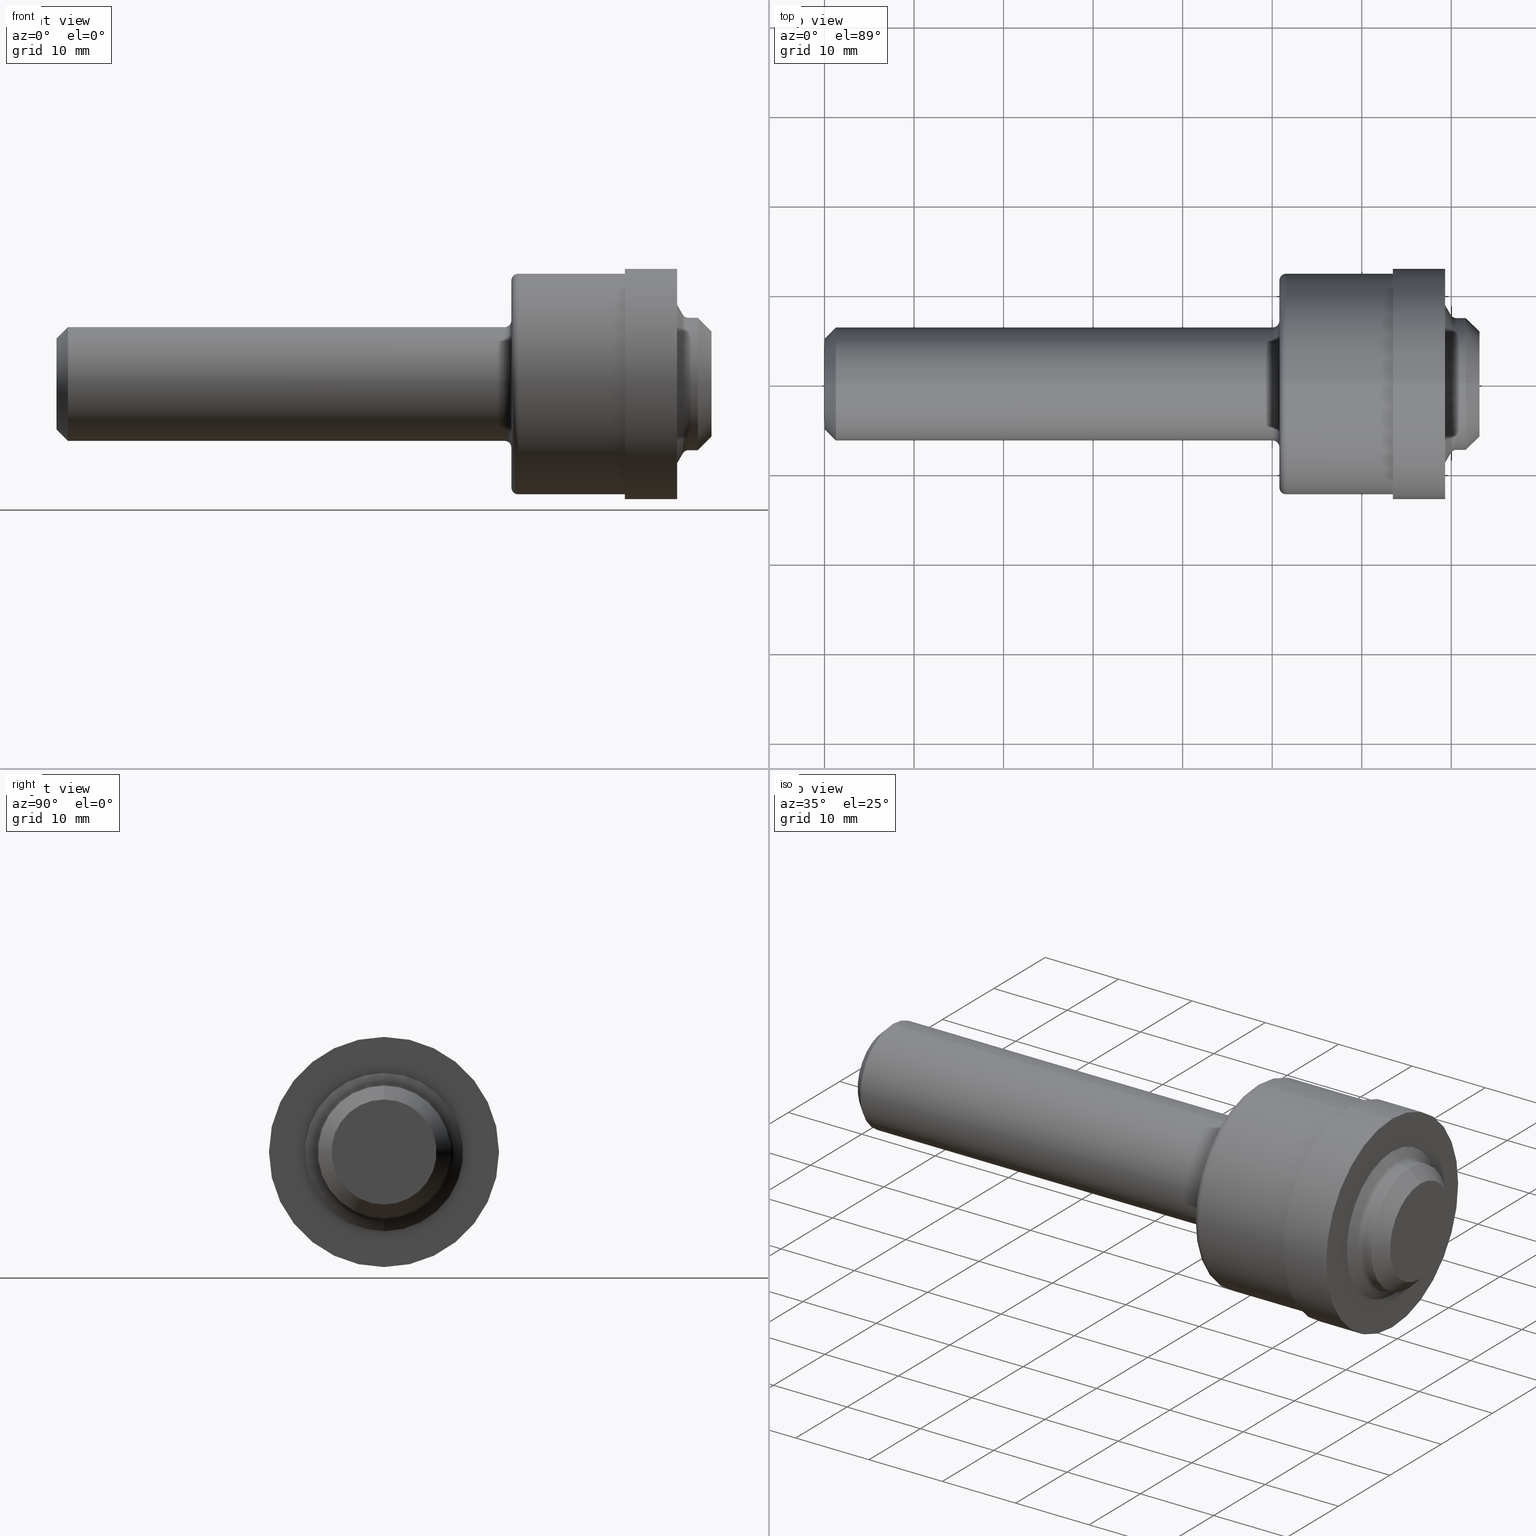
[diagram: canonical four-view strip — front | top / right | iso, engineering-drawing reading convention]
A machine part, canonical four-view strip (front | top / right | iso — engineering-drawing reading convention). The complete STEP part file that produces these views, byte-faithful:
ISO-10303-21;
HEADER;
FILE_DESCRIPTION (( 'STEP AP214' ),
    '1' );
FILE_NAME ('AS5202-06X.STEP',
    '2023-11-10T18:17:23',
    ( '' ),
    ( '' ),
    'SwSTEP 2.0',
    'SolidWorks 2022',
    '' );
FILE_SCHEMA (( 'AUTOMOTIVE_DESIGN' ));
ENDSEC;

DATA;
#1 = FACE_OUTER_BOUND ( 'NONE', #554, .T. ) ;
#2 = CARTESIAN_POINT ( 'NONE',  ( 1.969999999999999973, 0.000000000000000000, 0.2499000000000000110 ) ) ;
#3 = ORIENTED_EDGE ( 'NONE', *, *, #599, .F. ) ;
#4 = CARTESIAN_POINT ( 'NONE',  ( 2.753479651413640372, 0.000000000000000000, 0.3055999999999998162 ) ) ;
#5 = CARTESIAN_POINT ( 'NONE',  ( 2.728999999999999648, 0.5060000000000000053, 0.000000000000000000 ) ) ;
#6 = ORIENTED_EDGE ( 'NONE', *, *, #134, .T. ) ;
#7 = ADVANCED_FACE ( 'NONE', ( #202, #357 ), #619, .F. ) ;
#8 = VECTOR ( 'NONE', #114, 39.37007874015748143 ) ;
#9 = CARTESIAN_POINT ( 'NONE',  ( 2.753479651413640372, 0.000000000000000000, 0.000000000000000000 ) ) ;
#10 = EDGE_CURVE ( 'NONE', #592, #184, #463, .T. ) ;
#11 = CARTESIAN_POINT ( 'NONE',  ( 2.778594388123388104, 3.564946832317952946E-17, -0.2911000000000006360 ) ) ;
#12 = DIRECTION ( 'NONE',  ( -1.000000000000000000, -0.000000000000000000, -0.000000000000000000 ) ) ;
#13 = DIRECTION ( 'NONE',  ( 1.000000000000000000, 0.000000000000000000, 0.000000000000000000 ) ) ;
#14 = ORIENTED_EDGE ( 'NONE', *, *, #584, .F. ) ;
#15 = DIRECTION ( 'NONE',  ( 0.000000000000000000, 0.000000000000000000, 1.000000000000000000 ) ) ;
#16 = DIRECTION ( 'NONE',  ( -1.000000000000000000, -0.000000000000000000, -0.000000000000000000 ) ) ;
#17 = ORIENTED_EDGE ( 'NONE', *, *, #224, .F. ) ;
#18 = AXIS2_PLACEMENT_3D ( 'NONE', #9, #399, #62 ) ;
#19 = CARTESIAN_POINT ( 'NONE',  ( 0.000000000000000000, 0.000000000000000000, 0.000000000000000000 ) ) ;
#20 = AXIS2_PLACEMENT_3D ( 'NONE', #542, #640, #153 ) ;
#21 = CARTESIAN_POINT ( 'NONE',  ( 0.000000000000000000, 6.196712803685607066E-17, -0.5060000000000000053 ) ) ;
#22 = VERTEX_POINT ( 'NONE', #11 ) ;
#23 = CIRCLE ( 'NONE', #596, 0.2499000000000000110 ) ;
#24 = PRODUCT ( 'AS5202-06X', 'AS5202-06X', '', ( #198 ) ) ;
#25 = CARTESIAN_POINT ( 'NONE',  ( 0.05000000000000000278, 0.000000000000000000, 0.000000000000000000 ) ) ;
#26 = ORIENTED_EDGE ( 'NONE', *, *, #74, .F. ) ;
#27 = CARTESIAN_POINT ( 'NONE',  ( 2.819999999999999840, 0.000000000000000000, 0.000000000000000000 ) ) ;
#28 = ORIENTED_EDGE ( 'NONE', *, *, #84, .F. ) ;
#29 = PRODUCT_DEFINITION_FORMATION_WITH_SPECIFIED_SOURCE ( 'ANY', '', #24, .NOT_KNOWN. ) ;
#30 = PLANE ( 'NONE',  #216 ) ;
#31 = EDGE_CURVE ( 'NONE', #228, #189, #103, .T. ) ;
#32 = AXIS2_PLACEMENT_3D ( 'NONE', #492, #693, #319 ) ;
#33 = EDGE_LOOP ( 'NONE', ( #346, #583 ) ) ;
#34 = DIRECTION ( 'NONE',  ( 0.000000000000000000, 0.000000000000000000, 1.000000000000000000 ) ) ;
#35 = VERTEX_POINT ( 'NONE', #272 ) ;
#36 = AXIS2_PLACEMENT_3D ( 'NONE', #120, #333, #558 ) ;
#37 = CARTESIAN_POINT ( 'NONE',  ( 2.753479651413640372, 0.000000000000000000, 0.000000000000000000 ) ) ;
#38 = ORIENTED_EDGE ( 'NONE', *, *, #385, .T. ) ;
#39 = MANIFOLD_SOLID_BREP ( 'Body', #248 ) ;
#40 = EDGE_CURVE ( 'NONE', #311, #283, #207, .T. ) ;
#41 =( CONVERSION_BASED_UNIT ( 'INCH', #249 ) LENGTH_UNIT ( ) NAMED_UNIT ( #229 ) );
#42 = CONICAL_SURFACE ( 'NONE', #445, 0.3056000000000003713, 1.047197551196586973 ) ;
#43 = DIRECTION ( 'NONE',  ( 0.000000000000000000, 0.000000000000000000, 1.000000000000000000 ) ) ;
#44 = VERTEX_POINT ( 'NONE', #2 ) ;
#45 = CIRCLE ( 'NONE', #379, 0.2311000000000000276 ) ;
#46 = ADVANCED_FACE ( 'NONE', ( #57, #422 ), #209, .F. ) ;
#47 = DIRECTION ( 'NONE',  ( 1.000000000000000000, 0.000000000000000000, 0.000000000000000000 ) ) ;
#48 = VERTEX_POINT ( 'NONE', #109 ) ;
#49 = AXIS2_PLACEMENT_3D ( 'NONE', #296, #168, #443 ) ;
#50 = AXIS2_PLACEMENT_3D ( 'NONE', #127, #565, #79 ) ;
#51 = FACE_OUTER_BOUND ( 'NONE', #665, .T. ) ;
#52 = DIRECTION ( 'NONE',  ( 0.000000000000000000, 0.000000000000000000, 1.000000000000000000 ) ) ;
#53 = DIRECTION ( 'NONE',  ( 0.000000000000000000, 0.000000000000000000, 1.000000000000000000 ) ) ;
#54 = SURFACE_STYLE_FILL_AREA ( #635 ) ;
#55 = ADVANCED_FACE ( 'NONE', ( #315 ), #217, .F. ) ;
#56 = DIRECTION ( 'NONE',  ( 1.000000000000000000, 0.000000000000000000, 0.000000000000000000 ) ) ;
#57 = FACE_OUTER_BOUND ( 'NONE', #689, .T. ) ;
#58 = CARTESIAN_POINT ( 'NONE',  ( 2.498999999999999666, 0.000000000000000000, 0.5060000000000000053 ) ) ;
#59 = ORIENTED_EDGE ( 'NONE', *, *, #151, .F. ) ;
#60 = ADVANCED_FACE ( 'NONE', ( #429 ), #449, .T. ) ;
#61 = UNCERTAINTY_MEASURE_WITH_UNIT (LENGTH_MEASURE( 1.000000000000000082E-05 ), #543, 'distance_accuracy_value', 'NONE');
#62 = DIRECTION ( 'NONE',  ( 0.000000000000000000, 0.000000000000000000, 1.000000000000000000 ) ) ;
#63 = FACE_OUTER_BOUND ( 'NONE', #73, .T. ) ;
#64 = VERTEX_POINT ( 'NONE', #154 ) ;
#65 = DIRECTION ( 'NONE',  ( -1.000000000000000000, -0.000000000000000000, -0.000000000000000000 ) ) ;
#66 = DIRECTION ( 'NONE',  ( 0.000000000000000000, 0.000000000000000000, 1.000000000000000000 ) ) ;
#67 = ORIENTED_EDGE ( 'NONE', *, *, #695, .T. ) ;
#68 = DIRECTION ( 'NONE',  ( -1.000000000000000000, -0.000000000000000000, -0.000000000000000000 ) ) ;
#69 = DIRECTION ( 'NONE',  ( 0.000000000000000000, 0.000000000000000000, -1.000000000000000000 ) ) ;
#70 = EDGE_LOOP ( 'NONE', ( #579, #169, #3, #143 ) ) ;
#71 = DIRECTION ( 'NONE',  ( 0.000000000000000000, 0.000000000000000000, 1.000000000000000000 ) ) ;
#72 = FACE_OUTER_BOUND ( 'NONE', #559, .T. ) ;
#73 = EDGE_LOOP ( 'NONE', ( #607, #408, #67, #477 ) ) ;
#74 = EDGE_CURVE ( 'NONE', #472, #35, #157, .T. ) ;
#75 = COLOUR_RGB ( '',0.7529411764705882248, 0.7529411764705882248, 0.7529411764705882248 ) ;
#76 = DIRECTION ( 'NONE',  ( -1.000000000000000000, -0.000000000000000000, -0.000000000000000000 ) ) ;
#77 = AXIS2_PLACEMENT_3D ( 'NONE', #533, #267, #318 ) ;
#78 = TOROIDAL_SURFACE ( 'NONE', #300, 0.3200999999999999956, 0.02899999999999936656 ) ;
#79 = DIRECTION ( 'NONE',  ( 0.000000000000000000, 0.000000000000000000, 1.000000000000000000 ) ) ;
#80 = ORIENTED_EDGE ( 'NONE', *, *, #309, .T. ) ;
#81 = FACE_OUTER_BOUND ( 'NONE', #341, .T. ) ;
#82 = ORIENTED_EDGE ( 'NONE', *, *, #671, .F. ) ;
#83 = CARTESIAN_POINT ( 'NONE',  ( 0.000000000000000000, 0.000000000000000000, 0.000000000000000000 ) ) ;
#84 = EDGE_CURVE ( 'NONE', #489, #210, #437, .T. ) ;
#85 = FACE_OUTER_BOUND ( 'NONE', #172, .T. ) ;
#86 = DIRECTION ( 'NONE',  ( 0.000000000000000000, 0.000000000000000000, -1.000000000000000000 ) ) ;
#87 = LINE ( 'NONE', #673, #88 ) ;
#88 = VECTOR ( 'NONE', #147, 39.37007874015748143 ) ;
#89 = AXIS2_PLACEMENT_3D ( 'NONE', #656, #16, #222 ) ;
#90 = VERTEX_POINT ( 'NONE', #58 ) ;
#91 = DIRECTION ( 'NONE',  ( 0.000000000000000000, 0.000000000000000000, 1.000000000000000000 ) ) ;
#92 = ORIENTED_EDGE ( 'NONE', *, *, #309, .F. ) ;
#93 = EDGE_CURVE ( 'NONE', #539, #64, #119, .T. ) ;
#94 = CARTESIAN_POINT ( 'NONE',  ( 2.819999999999999840, 0.000000000000000000, 0.000000000000000000 ) ) ;
#95 = EDGE_LOOP ( 'NONE', ( #398, #384, #444, #367 ) ) ;
#96 = CIRCLE ( 'NONE', #538, 0.02899999999999937003 ) ;
#97 = CARTESIAN_POINT ( 'NONE',  ( 0.05000000000000000278, 0.000000000000000000, -0.2499000000000000110 ) ) ;
#98 = ORIENTED_EDGE ( 'NONE', *, *, #483, .F. ) ;
#99 = STYLED_ITEM ( 'NONE', ( #215 ), #39 ) ;
#100 = CARTESIAN_POINT ( 'NONE',  ( 0.000000000000000000, 0.000000000000000000, 0.000000000000000000 ) ) ;
#101 = ADVANCED_FACE ( 'NONE', ( #63 ), #78, .F. ) ;
#102 = DIRECTION ( 'NONE',  ( -1.000000000000000000, -0.000000000000000000, -0.000000000000000000 ) ) ;
#103 = LINE ( 'NONE', #265, #312 ) ;
#104 = EDGE_LOOP ( 'NONE', ( #524, #186, #652, #479 ) ) ;
#105 = CARTESIAN_POINT ( 'NONE',  ( 2.879999999999999893, 0.000000000000000000, 0.000000000000000000 ) ) ;
#106 = CIRCLE ( 'NONE', #214, 0.2311000000000000276 ) ;
#107 = TOROIDAL_SURFACE ( 'NONE', #678, 0.2798999999999999821, 0.02999999999999997113 ) ;
#108 = DIRECTION ( 'NONE',  ( 0.000000000000000000, 0.000000000000000000, 1.000000000000000000 ) ) ;
#109 = CARTESIAN_POINT ( 'NONE',  ( 1.969999999999999973, 3.244089370941338612E-17, -0.2499000000000000110 ) ) ;
#110 = EDGE_LOOP ( 'NONE', ( #499, #122, #381, #412 ) ) ;
#111 = EDGE_CURVE ( 'NONE', #210, #35, #691, .T. ) ;
#112 = CARTESIAN_POINT ( 'NONE',  ( 0.000000000000000000, 5.939536975864663462E-17, -0.4850000000000000422 ) ) ;
#113 = AXIS2_PLACEMENT_3D ( 'NONE', #501, #177, #400 ) ;
#114 = DIRECTION ( 'NONE',  ( -0.5000000000000093259, 0.000000000000000000, 0.8660254037844331565 ) ) ;
#115 = FACE_OUTER_BOUND ( 'NONE', #448, .T. ) ;
#116 = DIRECTION ( 'NONE',  ( 0.000000000000000000, 0.000000000000000000, 1.000000000000000000 ) ) ;
#117 = VERTEX_POINT ( 'NONE', #239 ) ;
#118 = AXIS2_PLACEMENT_3D ( 'NONE', #211, #547, #108 ) ;
#119 = CIRCLE ( 'NONE', #380, 0.2499000000000000110 ) ;
#120 = CARTESIAN_POINT ( 'NONE',  ( 1.969999999999999973, 3.427786390813441802E-17, -0.2798999999999999821 ) ) ;
#121 =( GEOMETRIC_REPRESENTATION_CONTEXT ( 3 ) GLOBAL_UNCERTAINTY_ASSIGNED_CONTEXT ( ( #61 ) ) GLOBAL_UNIT_ASSIGNED_CONTEXT ( ( #543, #269, #688 ) ) REPRESENTATION_CONTEXT ( 'NONE', 'WORKASPACE' ) );
#122 = ORIENTED_EDGE ( 'NONE', *, *, #260, .T. ) ;
#123 = LINE ( 'NONE', #614, #504 ) ;
#124 = LINE ( 'NONE', #21, #167 ) ;
#125 = ORIENTED_EDGE ( 'NONE', *, *, #292, .F. ) ;
#126 = LINE ( 'NONE', #331, #356 ) ;
#127 = CARTESIAN_POINT ( 'NONE',  ( 1.969999999999999973, 0.000000000000000000, 0.000000000000000000 ) ) ;
#128 = ORIENTED_EDGE ( 'NONE', *, *, #151, .T. ) ;
#129 = MECHANICAL_DESIGN_GEOMETRIC_PRESENTATION_REPRESENTATION (  '', ( #433 ), #411 ) ;
#130 = CIRCLE ( 'NONE', #626, 0.2911000000000000254 ) ;
#131 = DIRECTION ( 'NONE',  ( -1.000000000000000000, -0.000000000000000000, -0.000000000000000000 ) ) ;
#132 = ORIENTED_EDGE ( 'NONE', *, *, #490, .T. ) ;
#133 = EDGE_CURVE ( 'NONE', #158, #22, #510, .T. ) ;
#134 = EDGE_CURVE ( 'NONE', #563, #509, #576, .T. ) ;
#135 = FILL_AREA_STYLE ('',( #362 ) ) ;
#136 = CYLINDRICAL_SURFACE ( 'NONE', #173, 0.2499000000000000110 ) ;
#137 = CARTESIAN_POINT ( 'NONE',  ( 2.498999999999999666, 0.4850000000000000422, 0.000000000000000000 ) ) ;
#138 = DIRECTION ( 'NONE',  ( -1.000000000000000000, -0.000000000000000000, -0.000000000000000000 ) ) ;
#139 = EDGE_LOOP ( 'NONE', ( #531, #325, #148, #517 ) ) ;
#140 = CIRCLE ( 'NONE', #308, 0.02999999999999995379 ) ;
#141 = DIRECTION ( 'NONE',  ( 0.000000000000000000, 0.000000000000000000, 1.000000000000000000 ) ) ;
#142 = CIRCLE ( 'NONE', #436, 0.2798999999999999821 ) ;
#143 = ORIENTED_EDGE ( 'NONE', *, *, #40, .F. ) ;
#144 = CONICAL_SURFACE ( 'NONE', #417, 0.2499000000000000110, 0.7853981633974463916 ) ;
#145 = DIRECTION ( 'NONE',  ( 0.000000000000000000, 0.000000000000000000, 1.000000000000000000 ) ) ;
#146 = EDGE_LOOP ( 'NONE', ( #279, #404 ) ) ;
#147 = DIRECTION ( 'NONE',  ( 0.7071067811865489050, 8.659560562354915602E-17, 0.7071067811865461294 ) ) ;
#148 = ORIENTED_EDGE ( 'NONE', *, *, #329, .F. ) ;
#149 = FACE_OUTER_BOUND ( 'NONE', #645, .T. ) ;
#150 = DIRECTION ( 'NONE',  ( 0.000000000000000000, -1.224646799147352221E-16, 1.000000000000000000 ) ) ;
#151 = EDGE_CURVE ( 'NONE', #522, #677, #541, .T. ) ;
#152 = COLOUR_RGB ( '',0.7529411764705882248, 0.7529411764705882248, 0.7529411764705882248 ) ;
#153 = DIRECTION ( 'NONE',  ( 0.000000000000000000, 0.000000000000000000, 1.000000000000000000 ) ) ;
#154 = CARTESIAN_POINT ( 'NONE',  ( 0.05000000000000000278, 3.060392351069235421E-17, -0.2499000000000000110 ) ) ;
#155 = CONICAL_SURFACE ( 'NONE', #560, 0.2311000000000000276, 0.7853981633974491672 ) ;
#156 = CARTESIAN_POINT ( 'NONE',  ( 0.000000000000000000, 0.000000000000000000, -0.1999000000000001886 ) ) ;
#157 = LINE ( 'NONE', #278, #8 ) ;
#158 = VERTEX_POINT ( 'NONE', #439 ) ;
#159 = DIRECTION ( 'NONE',  ( -0.7071067811865469066, 0.000000000000000000, 0.7071067811865481278 ) ) ;
#160 = ADVANCED_FACE ( 'NONE', ( #81 ), #589, .T. ) ;
#161 = LENGTH_MEASURE_WITH_UNIT ( LENGTH_MEASURE( 0.02539999999999999897 ), #482 );
#162 = AXIS2_PLACEMENT_3D ( 'NONE', #301, #669, #518 ) ;
#163 = CARTESIAN_POINT ( 'NONE',  ( 2.728999999999999648, 0.000000000000000000, 0.5060000000000000053 ) ) ;
#164 = PRODUCT_DEFINITION ( 'UNKNOWN', '', #29, #233 ) ;
#165 = ORIENTED_EDGE ( 'NONE', *, *, #440, .F. ) ;
#166 = DIRECTION ( 'NONE',  ( -1.000000000000000000, -0.000000000000000000, -0.000000000000000000 ) ) ;
#167 = VECTOR ( 'NONE', #235, 39.37007874015748143 ) ;
#168 = DIRECTION ( 'NONE',  ( -1.000000000000000000, -0.000000000000000000, -0.000000000000000000 ) ) ;
#169 = ORIENTED_EDGE ( 'NONE', *, *, #10, .T. ) ;
#170 = FACE_OUTER_BOUND ( 'NONE', #139, .T. ) ;
#171 = CARTESIAN_POINT ( 'NONE',  ( 2.778594388123388104, 0.000000000000000000, 0.000000000000000000 ) ) ;
#172 = EDGE_LOOP ( 'NONE', ( #361, #512, #80, #349 ) ) ;
#173 = AXIS2_PLACEMENT_3D ( 'NONE', #582, #138, #34 ) ;
#174 = EDGE_CURVE ( 'NONE', #48, #64, #227, .T. ) ;
#175 = DIRECTION ( 'NONE',  ( -1.000000000000000000, -0.000000000000000000, -0.000000000000000000 ) ) ;
#176 = CIRCLE ( 'NONE', #573, 0.5060000000000000053 ) ;
#177 = DIRECTION ( 'NONE',  ( -1.000000000000000000, -0.000000000000000000, -0.000000000000000000 ) ) ;
#178 = ORIENTED_EDGE ( 'NONE', *, *, #680, .T. ) ;
#179 = DIRECTION ( 'NONE',  ( 0.000000000000000000, -1.000000000000000000, 0.000000000000000000 ) ) ;
#180 = FACE_OUTER_BOUND ( 'NONE', #146, .T. ) ;
#181 = ORIENTED_EDGE ( 'NONE', *, *, #604, .T. ) ;
#182 = CYLINDRICAL_SURFACE ( 'NONE', #49, 0.2911000000000003585 ) ;
#183 = EDGE_CURVE ( 'NONE', #489, #22, #466, .T. ) ;
#184 = VERTEX_POINT ( 'NONE', #389 ) ;
#185 = DIRECTION ( 'NONE',  ( -1.000000000000000000, -0.000000000000000000, -0.000000000000000000 ) ) ;
#186 = ORIENTED_EDGE ( 'NONE', *, *, #201, .T. ) ;
#187 = DIRECTION ( 'NONE',  ( 0.000000000000000000, 0.000000000000000000, 1.000000000000000000 ) ) ;
#188 = DIRECTION ( 'NONE',  ( 0.000000000000000000, 0.000000000000000000, 1.000000000000000000 ) ) ;
#189 = VERTEX_POINT ( 'NONE', #345 ) ;
#190 = DIRECTION ( 'NONE',  ( -1.000000000000000000, -0.000000000000000000, -0.000000000000000000 ) ) ;
#191 = ORIENTED_EDGE ( 'NONE', *, *, #133, .F. ) ;
#192 = APPLICATION_PROTOCOL_DEFINITION ( 'draft international standard', 'automotive_design', 1998, #536 ) ;
#193 = ADVANCED_FACE ( 'NONE', ( #72 ), #182, .T. ) ;
#194 = CARTESIAN_POINT ( 'NONE',  ( 2.879999999999999893, 0.000000000000000000, 0.000000000000000000 ) ) ;
#195 = AXIS2_PLACEMENT_3D ( 'NONE', #481, #68, #608 ) ;
#196 = AXIS2_PLACEMENT_3D ( 'NONE', #637, #591, #639 ) ;
#197 = VERTEX_POINT ( 'NONE', #516 ) ;
#198 = PRODUCT_CONTEXT ( 'NONE', #536, 'mechanical' ) ;
#199 = DIRECTION ( 'NONE',  ( -1.000000000000000000, -0.000000000000000000, -0.000000000000000000 ) ) ;
#200 = VERTEX_POINT ( 'NONE', #651 ) ;
#201 = EDGE_CURVE ( 'NONE', #48, #661, #441, .T. ) ;
#202 = FACE_BOUND ( 'NONE', #426, .T. ) ;
#203 = EDGE_CURVE ( 'NONE', #509, #563, #372, .T. ) ;
#204 = DIRECTION ( 'NONE',  ( 0.000000000000000000, 0.000000000000000000, -1.000000000000000000 ) ) ;
#205 = AXIS2_PLACEMENT_3D ( 'NONE', #684, #56, #204 ) ;
#206 = DIRECTION ( 'NONE',  ( -0.000000000000000000, 0.000000000000000000, 1.000000000000000000 ) ) ;
#207 = CIRCLE ( 'NONE', #32, 0.03000000000000002318 ) ;
#208 = DIRECTION ( 'NONE',  ( 0.000000000000000000, 0.000000000000000000, 1.000000000000000000 ) ) ;
#209 = PLANE ( 'NONE',  #679 ) ;
#210 = VERTEX_POINT ( 'NONE', #569 ) ;
#211 = CARTESIAN_POINT ( 'NONE',  ( 2.000000000000000000, 0.000000000000000000, 0.000000000000000000 ) ) ;
#212 = ORIENTED_EDGE ( 'NONE', *, *, #31, .T. ) ;
#213 = FACE_OUTER_BOUND ( 'NONE', #95, .T. ) ;
#214 = AXIS2_PLACEMENT_3D ( 'NONE', #221, #65, #15 ) ;
#215 = PRESENTATION_STYLE_ASSIGNMENT (( #644 ) ) ;
#216 = AXIS2_PLACEMENT_3D ( 'NONE', #618, #628, #246 ) ;
#217 = TOROIDAL_SURFACE ( 'NONE', #359, 0.2798999999999999821, 0.02999999999999997113 ) ;
#218 = UNCERTAINTY_MEASURE_WITH_UNIT (LENGTH_MEASURE( 1.000000000000000082E-05 ), #41, 'distance_accuracy_value', 'NONE');
#219 = DIRECTION ( 'NONE',  ( -1.000000000000000000, -0.000000000000000000, -0.000000000000000000 ) ) ;
#220 = DIRECTION ( 'NONE',  ( -1.000000000000000000, -0.000000000000000000, -0.000000000000000000 ) ) ;
#221 = CARTESIAN_POINT ( 'NONE',  ( 2.879999999999999893, 0.000000000000000000, 0.000000000000000000 ) ) ;
#222 = DIRECTION ( 'NONE',  ( 0.000000000000000000, 0.000000000000000000, 1.000000000000000000 ) ) ;
#223 = EDGE_LOOP ( 'NONE', ( #6, #132, #418, #92 ) ) ;
#224 = EDGE_CURVE ( 'NONE', #22, #158, #672, .T. ) ;
#225 = DIRECTION ( 'NONE',  ( 0.000000000000000000, 0.000000000000000000, -1.000000000000000000 ) ) ;
#226 = VECTOR ( 'NONE', #654, 39.37007874015748143 ) ;
#227 = LINE ( 'NONE', #455, #338 ) ;
#228 = VERTEX_POINT ( 'NONE', #446 ) ;
#229 = DIMENSIONAL_EXPONENTS ( 1.000000000000000000, 0.000000000000000000, 0.000000000000000000, 0.000000000000000000, 0.000000000000000000, 0.000000000000000000, 0.000000000000000000 ) ;
#230 = VECTOR ( 'NONE', #487, 39.37007874015748143 ) ;
#231 = AXIS2_PLACEMENT_3D ( 'NONE', #511, #286, #606 ) ;
#232 = DIRECTION ( 'NONE',  ( 0.000000000000000000, -1.000000000000000000, 0.000000000000000000 ) ) ;
#233 = PRODUCT_DEFINITION_CONTEXT ( 'detailed design', #595, 'design' ) ;
#234 = AXIS2_PLACEMENT_3D ( 'NONE', #100, #423, #434 ) ;
#235 = DIRECTION ( 'NONE',  ( -1.000000000000000000, -0.000000000000000000, -0.000000000000000000 ) ) ;
#236 = ORIENTED_EDGE ( 'NONE', *, *, #183, .T. ) ;
#237 = LENGTH_MEASURE_WITH_UNIT ( LENGTH_MEASURE( 0.02539999999999999897 ), #276 );
#238 = ADVANCED_FACE ( 'NONE', ( #507, #180 ), #290, .F. ) ;
#239 = CARTESIAN_POINT ( 'NONE',  ( 2.498999999999999666, 6.196712803685607066E-17, -0.5060000000000000053 ) ) ;
#240 = ORIENTED_EDGE ( 'NONE', *, *, #40, .T. ) ;
#241 = SURFACE_STYLE_USAGE ( .BOTH. , #568 ) ;
#242 = EDGE_CURVE ( 'NONE', #528, #613, #480, .T. ) ;
#243 = FACE_OUTER_BOUND ( 'NONE', #364, .T. ) ;
#244 = ORIENTED_EDGE ( 'NONE', *, *, #405, .F. ) ;
#245 =( NAMED_UNIT ( * ) SI_UNIT ( $, .STERADIAN. ) SOLID_ANGLE_UNIT ( ) );
#246 = DIRECTION ( 'NONE',  ( -0.000000000000000000, 0.000000000000000000, 1.000000000000000000 ) ) ;
#247 = ORIENTED_EDGE ( 'NONE', *, *, #93, .F. ) ;
#248 = CLOSED_SHELL ( 'NONE', ( #160, #578, #55, #503, #525, #632, #585, #532, #193, #302, #330, #457, #396, #101, #427, #46, #659, #7, #313, #60, #238, #567, #374, #513, #557 ) ) ;
#249 = LENGTH_MEASURE_WITH_UNIT ( LENGTH_MEASURE( 0.02539999999999999897 ), #353 );
#250 = DIRECTION ( 'NONE',  ( -1.000000000000000000, -0.000000000000000000, -0.000000000000000000 ) ) ;
#251 = ORIENTED_EDGE ( 'NONE', *, *, #385, .F. ) ;
#252 = EDGE_CURVE ( 'NONE', #613, #117, #124, .T. ) ;
#253 = FACE_OUTER_BOUND ( 'NONE', #682, .T. ) ;
#254 = ORIENTED_EDGE ( 'NONE', *, *, #383, .F. ) ;
#255 = PRESENTATION_STYLE_ASSIGNMENT (( #241 ) ) ;
#256 = LINE ( 'NONE', #526, #590 ) ;
#257 = VECTOR ( 'NONE', #310, 39.37007874015748143 ) ;
#258 = ORIENTED_EDGE ( 'NONE', *, *, #365, .F. ) ;
#259 = EDGE_CURVE ( 'NONE', #117, #90, #351, .T. ) ;
#260 = EDGE_CURVE ( 'NONE', #48, #44, #648, .T. ) ;
#261 = DIRECTION ( 'NONE',  ( 0.000000000000000000, 0.000000000000000000, -1.000000000000000000 ) ) ;
#262 = ORIENTED_EDGE ( 'NONE', *, *, #695, .F. ) ;
#263 = AXIS2_PLACEMENT_3D ( 'NONE', #452, #397, #612 ) ;
#264 = CYLINDRICAL_SURFACE ( 'NONE', #195, 0.2499000000000000110 ) ;
#265 = CARTESIAN_POINT ( 'NONE',  ( 2.879999999999999893, 2.830158752829533405E-17, -0.2311000000000000276 ) ) ;
#266 = ORIENTED_EDGE ( 'NONE', *, *, #440, .T. ) ;
#267 = DIRECTION ( 'NONE',  ( -1.000000000000000000, -0.000000000000000000, -0.000000000000000000 ) ) ;
#268 = VECTOR ( 'NONE', #159, 39.37007874015748143 ) ;
#269 =( NAMED_UNIT ( * ) PLANE_ANGLE_UNIT ( ) SI_UNIT ( $, .RADIAN. ) );
#270 = AXIS2_PLACEMENT_3D ( 'NONE', #340, #220, #66 ) ;
#271 = DIRECTION ( 'NONE',  ( 0.000000000000000000, 0.000000000000000000, 1.000000000000000000 ) ) ;
#272 = CARTESIAN_POINT ( 'NONE',  ( 2.728999999999999648, 0.000000000000000000, 0.3479999999999999760 ) ) ;
#273 = CARTESIAN_POINT ( 'NONE',  ( 2.029999999999999805, 0.000000000000000000, 0.000000000000000000 ) ) ;
#274 = DIRECTION ( 'NONE',  ( -1.000000000000000000, -0.000000000000000000, -0.000000000000000000 ) ) ;
#275 = ORIENTED_EDGE ( 'NONE', *, *, #617, .F. ) ;
#276 =( LENGTH_UNIT ( ) NAMED_UNIT ( * ) SI_UNIT ( $, .METRE. ) );
#277 = AXIS2_PLACEMENT_3D ( 'NONE', #83, #187, #406 ) ;
#278 = CARTESIAN_POINT ( 'NONE',  ( 2.753479651413640372, 0.000000000000000000, 0.3056000000000003713 ) ) ;
#279 = ORIENTED_EDGE ( 'NONE', *, *, #599, .T. ) ;
#280 = DIRECTION ( 'NONE',  ( 0.000000000000000000, 0.000000000000000000, -1.000000000000000000 ) ) ;
#281 = EDGE_CURVE ( 'NONE', #528, #90, #256, .T. ) ;
#282 = DIRECTION ( 'NONE',  ( 0.000000000000000000, 0.000000000000000000, 1.000000000000000000 ) ) ;
#283 = VERTEX_POINT ( 'NONE', #459 ) ;
#284 = CARTESIAN_POINT ( 'NONE',  ( 2.000000000000000000, 3.427786390813441802E-17, -0.2798999999999999821 ) ) ;
#285 = AXIS2_PLACEMENT_3D ( 'NONE', #407, #521, #188 ) ;
#286 = DIRECTION ( 'NONE',  ( -1.000000000000000000, -0.000000000000000000, -0.000000000000000000 ) ) ;
#287 = ORIENTED_EDGE ( 'NONE', *, *, #292, .T. ) ;
#288 = CYLINDRICAL_SURFACE ( 'NONE', #594, 0.5060000000000000053 ) ;
#289 = CIRCLE ( 'NONE', #368, 0.2499000000000000110 ) ;
#290 = PLANE ( 'NONE',  #683 ) ;
#291 = ORIENTED_EDGE ( 'NONE', *, *, #483, .T. ) ;
#292 = EDGE_CURVE ( 'NONE', #613, #528, #317, .T. ) ;
#293 = CARTESIAN_POINT ( 'NONE',  ( 1.969999999999999973, 0.000000000000000000, 0.2798999999999999821 ) ) ;
#294 = DIRECTION ( 'NONE',  ( -1.000000000000000000, -0.000000000000000000, -0.000000000000000000 ) ) ;
#295 = ORIENTED_EDGE ( 'NONE', *, *, #224, .T. ) ;
#296 = CARTESIAN_POINT ( 'NONE',  ( 0.000000000000000000, 0.000000000000000000, 0.000000000000000000 ) ) ;
#297 = ORIENTED_EDGE ( 'NONE', *, *, #475, .T. ) ;
#298 = CYLINDRICAL_SURFACE ( 'NONE', #162, 0.2911000000000003585 ) ;
#299 = CARTESIAN_POINT ( 'NONE',  ( 2.029999999999999805, 5.572142936120457080E-17, -0.4550000000000000155 ) ) ;
#300 = AXIS2_PLACEMENT_3D ( 'NONE', #609, #131, #282 ) ;
#301 = CARTESIAN_POINT ( 'NONE',  ( 0.000000000000000000, 0.000000000000000000, 0.000000000000000000 ) ) ;
#302 = ADVANCED_FACE ( 'NONE', ( #253 ), #155, .T. ) ;
#303 = ORIENTED_EDGE ( 'NONE', *, *, #515, .F. ) ;
#304 = FACE_OUTER_BOUND ( 'NONE', #484, .T. ) ;
#305 = ORIENTED_EDGE ( 'NONE', *, *, #649, .T. ) ;
#306 = DIRECTION ( 'NONE',  ( -1.000000000000000000, -0.000000000000000000, -0.000000000000000000 ) ) ;
#307 = EDGE_LOOP ( 'NONE', ( #401, #431, #610, #26 ) ) ;
#308 = AXIS2_PLACEMENT_3D ( 'NONE', #293, #179, #225 ) ;
#309 = EDGE_CURVE ( 'NONE', #563, #311, #360, .T. ) ;
#310 = DIRECTION ( 'NONE',  ( 0.7071067811865489050, 0.000000000000000000, -0.7071067811865461294 ) ) ;
#311 = VERTEX_POINT ( 'NONE', #630 ) ;
#312 = VECTOR ( 'NONE', #376, 39.37007874015748143 ) ;
#313 = ADVANCED_FACE ( 'NONE', ( #85 ), #350, .T. ) ;
#314 = FACE_OUTER_BOUND ( 'NONE', #570, .T. ) ;
#315 = FACE_OUTER_BOUND ( 'NONE', #104, .T. ) ;
#316 = AXIS2_PLACEMENT_3D ( 'NONE', #387, #393, #602 ) ;
#317 = CIRCLE ( 'NONE', #285, 0.5060000000000000053 ) ;
#318 = DIRECTION ( 'NONE',  ( 0.000000000000000000, 0.000000000000000000, 1.000000000000000000 ) ) ;
#319 = DIRECTION ( 'NONE',  ( 0.000000000000000000, 0.000000000000000000, -1.000000000000000000 ) ) ;
#320 = DIRECTION ( 'NONE',  ( -1.000000000000000000, -0.000000000000000000, -0.000000000000000000 ) ) ;
#321 = CONICAL_SURFACE ( 'NONE', #642, 0.3056000000000003713, 1.047197551196586973 ) ;
#322 = CARTESIAN_POINT ( 'NONE',  ( 2.753479651413640372, 3.742520618194316303E-17, -0.3056000000000003713 ) ) ;
#323 = AXIS2_PLACEMENT_3D ( 'NONE', #571, #185, #676 ) ;
#324 = CYLINDRICAL_SURFACE ( 'NONE', #234, 0.4850000000000000422 ) ;
#325 = ORIENTED_EDGE ( 'NONE', *, *, #252, .T. ) ;
#326 = CARTESIAN_POINT ( 'NONE',  ( 2.753479651413640372, 0.000000000000000000, 0.000000000000000000 ) ) ;
#327 = DIRECTION ( 'NONE',  ( -0.5000000000000093259, 1.060575238724900259E-16, -0.8660254037844331565 ) ) ;
#328 = ORIENTED_EDGE ( 'NONE', *, *, #281, .T. ) ;
#329 = EDGE_CURVE ( 'NONE', #90, #117, #176, .T. ) ;
#330 = ADVANCED_FACE ( 'NONE', ( #304 ), #30, .F. ) ;
#331 = CARTESIAN_POINT ( 'NONE',  ( 0.000000000000000000, 0.000000000000000000, 0.2911000000000003585 ) ) ;
#332 = AXIS2_PLACEMENT_3D ( 'NONE', #561, #76, #605 ) ;
#333 = DIRECTION ( 'NONE',  ( -0.000000000000000000, 1.000000000000000000, 1.224646799147353207E-16 ) ) ;
#334 = ORIENTED_EDGE ( 'NONE', *, *, #93, .T. ) ;
#335 = DIMENSIONAL_EXPONENTS ( 1.000000000000000000, 0.000000000000000000, 0.000000000000000000, 0.000000000000000000, 0.000000000000000000, 0.000000000000000000, 0.000000000000000000 ) ;
#336 = DIRECTION ( 'NONE',  ( -0.000000000000000000, 1.000000000000000000, 1.224646799147353207E-16 ) ) ;
#337 = ORIENTED_EDGE ( 'NONE', *, *, #74, .T. ) ;
#338 = VECTOR ( 'NONE', #647, 39.37007874015748143 ) ;
#339 = CARTESIAN_POINT ( 'NONE',  ( 2.778594388123387660, 0.000000000000000000, 0.3200999999999999956 ) ) ;
#340 = CARTESIAN_POINT ( 'NONE',  ( 2.498999999999999666, 0.000000000000000000, 0.000000000000000000 ) ) ;
#341 = EDGE_LOOP ( 'NONE', ( #14, #38, #334, #244 ) ) ;
#342 = PRODUCT_DEFINITION_SHAPE ( 'NONE', 'NONE',  #164 ) ;
#343 = CARTESIAN_POINT ( 'NONE',  ( 0.05000000000000000278, 0.000000000000000000, 0.000000000000000000 ) ) ;
#344 = CIRCLE ( 'NONE', #332, 0.3479999999999999760 ) ;
#345 = CARTESIAN_POINT ( 'NONE',  ( 2.819999999999999840, 3.564946832317945551E-17, -0.2911000000000000254 ) ) ;
#346 = ORIENTED_EDGE ( 'NONE', *, *, #329, .T. ) ;
#347 = AXIS2_PLACEMENT_3D ( 'NONE', #94, #643, #382 ) ;
#348 = DIRECTION ( 'NONE',  ( 1.000000000000000000, 0.000000000000000000, 0.000000000000000000 ) ) ;
#349 = ORIENTED_EDGE ( 'NONE', *, *, #475, .F. ) ;
#350 = CYLINDRICAL_SURFACE ( 'NONE', #425, 0.4850000000000000422 ) ;
#351 = CIRCLE ( 'NONE', #263, 0.5060000000000000053 ) ;
#352 = ORIENTED_EDGE ( 'NONE', *, *, #134, .F. ) ;
#353 =( LENGTH_UNIT ( ) NAMED_UNIT ( * ) SI_UNIT ( $, .METRE. ) );
#354 = EDGE_CURVE ( 'NONE', #472, #489, #485, .T. ) ;
#355 = DIRECTION ( 'NONE',  ( 0.000000000000000000, 0.000000000000000000, 1.000000000000000000 ) ) ;
#356 = VECTOR ( 'NONE', #386, 39.37007874015748143 ) ;
#357 = FACE_OUTER_BOUND ( 'NONE', #33, .T. ) ;
#358 = AXIS2_PLACEMENT_3D ( 'NONE', #476, #250, #624 ) ;
#359 = AXIS2_PLACEMENT_3D ( 'NONE', #488, #534, #52 ) ;
#360 = LINE ( 'NONE', #621, #468 ) ;
#361 = ORIENTED_EDGE ( 'NONE', *, *, #490, .F. ) ;
#362 = FILL_AREA_STYLE_COLOUR ( '', #75 ) ;
#363 = DIRECTION ( 'NONE',  ( -1.000000000000000000, -0.000000000000000000, -0.000000000000000000 ) ) ;
#364 = EDGE_LOOP ( 'NONE', ( #28, #178, #337, #420 ) ) ;
#365 = EDGE_CURVE ( 'NONE', #661, #464, #627, .T. ) ;
#366 = FACE_OUTER_BOUND ( 'NONE', #519, .T. ) ;
#367 = ORIENTED_EDGE ( 'NONE', *, *, #383, .T. ) ;
#368 = AXIS2_PLACEMENT_3D ( 'NONE', #343, #219, #454 ) ;
#369 = DIRECTION ( 'NONE',  ( 0.000000000000000000, 0.000000000000000000, 1.000000000000000000 ) ) ;
#370 = LINE ( 'NONE', #687, #268 ) ;
#371 = CARTESIAN_POINT ( 'NONE',  ( 2.728999999999999648, 0.000000000000000000, 0.000000000000000000 ) ) ;
#372 = CIRCLE ( 'NONE', #316, 0.4850000000000000422 ) ;
#373 = ORIENTED_EDGE ( 'NONE', *, *, #203, .F. ) ;
#374 = ADVANCED_FACE ( 'NONE', ( #402 ), #136, .T. ) ;
#375 = CARTESIAN_POINT ( 'NONE',  ( 1.969999999999999973, 0.000000000000000000, 0.000000000000000000 ) ) ;
#376 = DIRECTION ( 'NONE',  ( -0.7071067811865469066, 8.659560562354940254E-17, -0.7071067811865481278 ) ) ;
#377 =( GEOMETRIC_REPRESENTATION_CONTEXT ( 3 ) GLOBAL_UNCERTAINTY_ASSIGNED_CONTEXT ( ( #495 ) ) GLOBAL_UNIT_ASSIGNED_CONTEXT ( ( #662, #556, #245 ) ) REPRESENTATION_CONTEXT ( 'NONE', 'WORKASPACE' ) );
#378 = CARTESIAN_POINT ( 'NONE',  ( 0.05000000000000000278, 0.000000000000000000, 0.000000000000000000 ) ) ;
#379 = AXIS2_PLACEMENT_3D ( 'NONE', #105, #586, #271 ) ;
#380 = AXIS2_PLACEMENT_3D ( 'NONE', #548, #274, #550 ) ;
#381 = ORIENTED_EDGE ( 'NONE', *, *, #617, .T. ) ;
#382 = DIRECTION ( 'NONE',  ( 0.000000000000000000, 0.000000000000000000, 1.000000000000000000 ) ) ;
#383 = EDGE_CURVE ( 'NONE', #464, #661, #142, .T. ) ;
#384 = ORIENTED_EDGE ( 'NONE', *, *, #435, .F. ) ;
#385 = EDGE_CURVE ( 'NONE', #677, #539, #87, .T. ) ;
#386 = DIRECTION ( 'NONE',  ( -1.000000000000000000, -0.000000000000000000, -0.000000000000000000 ) ) ;
#387 = CARTESIAN_POINT ( 'NONE',  ( 2.498999999999999666, 0.000000000000000000, 0.000000000000000000 ) ) ;
#388 = CYLINDRICAL_SURFACE ( 'NONE', #634, 0.5060000000000000053 ) ;
#389 = CARTESIAN_POINT ( 'NONE',  ( 2.000000000000000000, 5.755839955992559655E-17, -0.4550000000000000155 ) ) ;
#390 = ORIENTED_EDGE ( 'NONE', *, *, #460, .F. ) ;
#391 = AXIS2_PLACEMENT_3D ( 'NONE', #371, #294, #615 ) ;
#392 = CARTESIAN_POINT ( 'NONE',  ( 0.000000000000000000, 2.754230651282398413E-17, 0.1999000000000001886 ) ) ;
#393 = DIRECTION ( 'NONE',  ( -1.000000000000000000, -0.000000000000000000, -0.000000000000000000 ) ) ;
#394 = EDGE_LOOP ( 'NONE', ( #566, #297, #240, #303 ) ) ;
#395 = LINE ( 'NONE', #658, #226 ) ;
#396 = ADVANCED_FACE ( 'NONE', ( #366 ), #298, .T. ) ;
#397 = DIRECTION ( 'NONE',  ( -1.000000000000000000, -0.000000000000000000, -0.000000000000000000 ) ) ;
#398 = ORIENTED_EDGE ( 'NONE', *, *, #201, .F. ) ;
#399 = DIRECTION ( 'NONE',  ( -1.000000000000000000, -0.000000000000000000, -0.000000000000000000 ) ) ;
#400 = DIRECTION ( 'NONE',  ( 0.000000000000000000, 0.000000000000000000, 1.000000000000000000 ) ) ;
#401 = ORIENTED_EDGE ( 'NONE', *, *, #354, .T. ) ;
#402 = FACE_OUTER_BOUND ( 'NONE', #110, .T. ) ;
#403 = AXIS2_PLACEMENT_3D ( 'NONE', #137, #572, #86 ) ;
#404 = ORIENTED_EDGE ( 'NONE', *, *, #515, .T. ) ;
#405 = EDGE_CURVE ( 'NONE', #522, #64, #467, .T. ) ;
#406 = DIRECTION ( 'NONE',  ( 1.000000000000000000, 0.000000000000000000, 0.000000000000000000 ) ) ;
#407 = CARTESIAN_POINT ( 'NONE',  ( 2.728999999999999648, 0.000000000000000000, 0.000000000000000000 ) ) ;
#408 = ORIENTED_EDGE ( 'NONE', *, *, #354, .F. ) ;
#409 = ADVANCED_BREP_SHAPE_REPRESENTATION ( 'AS5202-06X', ( #39, #277 ), #377 ) ;
#410 = DIRECTION ( 'NONE',  ( -1.000000000000000000, -0.000000000000000000, -0.000000000000000000 ) ) ;
#411 =( GEOMETRIC_REPRESENTATION_CONTEXT ( 3 ) GLOBAL_UNCERTAINTY_ASSIGNED_CONTEXT ( ( #218 ) ) GLOBAL_UNIT_ASSIGNED_CONTEXT ( ( #41, #668, #474 ) ) REPRESENTATION_CONTEXT ( 'NONE', 'WORKASPACE' ) );
#412 = ORIENTED_EDGE ( 'NONE', *, *, #649, .F. ) ;
#413 = AXIS2_PLACEMENT_3D ( 'NONE', #486, #102, #208 ) ;
#414 = VECTOR ( 'NONE', #327, 39.37007874015748143 ) ;
#415 = EDGE_CURVE ( 'NONE', #189, #197, #130, .T. ) ;
#416 = DIRECTION ( 'NONE',  ( 0.000000000000000000, 0.000000000000000000, 1.000000000000000000 ) ) ;
#417 = AXIS2_PLACEMENT_3D ( 'NONE', #378, #47, #261 ) ;
#418 = ORIENTED_EDGE ( 'NONE', *, *, #546, .F. ) ;
#419 = DIRECTION ( 'NONE',  ( 0.000000000000000000, 0.000000000000000000, 1.000000000000000000 ) ) ;
#420 = ORIENTED_EDGE ( 'NONE', *, *, #111, .F. ) ;
#421 = CARTESIAN_POINT ( 'NONE',  ( 0.05000000000000000278, 0.000000000000000000, 0.2499000000000000110 ) ) ;
#422 = FACE_BOUND ( 'NONE', #493, .T. ) ;
#423 = DIRECTION ( 'NONE',  ( -1.000000000000000000, -0.000000000000000000, -0.000000000000000000 ) ) ;
#424 = DIRECTION ( 'NONE',  ( -0.000000000000000000, 1.000000000000000000, 1.224646799147353207E-16 ) ) ;
#425 = AXIS2_PLACEMENT_3D ( 'NONE', #666, #471, #355 ) ;
#426 = EDGE_LOOP ( 'NONE', ( #352, #373 ) ) ;
#427 = ADVANCED_FACE ( 'NONE', ( #243 ), #321, .T. ) ;
#428 = CARTESIAN_POINT ( 'NONE',  ( 2.753479651413640372, 3.742520618194309524E-17, -0.3055999999999998162 ) ) ;
#429 = FACE_OUTER_BOUND ( 'NONE', #394, .T. ) ;
#430 = AXIS2_PLACEMENT_3D ( 'NONE', #660, #336, #664 ) ;
#431 = ORIENTED_EDGE ( 'NONE', *, *, #84, .T. ) ;
#432 = FACE_OUTER_BOUND ( 'NONE', #223, .T. ) ;
#433 = STYLED_ITEM ( 'NONE', ( #255 ), #409 ) ;
#434 = DIRECTION ( 'NONE',  ( 0.000000000000000000, 0.000000000000000000, 1.000000000000000000 ) ) ;
#435 = EDGE_CURVE ( 'NONE', #44, #48, #23, .T. ) ;
#436 = AXIS2_PLACEMENT_3D ( 'NONE', #574, #306, #419 ) ;
#437 = LINE ( 'NONE', #322, #414 ) ;
#438 = CARTESIAN_POINT ( 'NONE',  ( 2.029999999999999805, 5.939536975864663462E-17, -0.4850000000000000422 ) ) ;
#439 = CARTESIAN_POINT ( 'NONE',  ( 2.778594388123388104, 0.000000000000000000, 0.2911000000000006360 ) ) ;
#440 = EDGE_CURVE ( 'NONE', #197, #189, #473, .T. ) ;
#441 = CIRCLE ( 'NONE', #36, 0.02999999999999995379 ) ;
#442 = FACE_OUTER_BOUND ( 'NONE', #307, .T. ) ;
#443 = DIRECTION ( 'NONE',  ( 0.000000000000000000, 0.000000000000000000, 1.000000000000000000 ) ) ;
#444 = ORIENTED_EDGE ( 'NONE', *, *, #685, .T. ) ;
#445 = AXIS2_PLACEMENT_3D ( 'NONE', #326, #166, #497 ) ;
#446 = CARTESIAN_POINT ( 'NONE',  ( 2.879999999999999893, 3.197552792573739786E-17, -0.2311000000000000276 ) ) ;
#447 = CIRCLE ( 'NONE', #527, 0.1999000000000001886 ) ;
#448 = EDGE_LOOP ( 'NONE', ( #545, #287, #328, #453 ) ) ;
#449 = TOROIDAL_SURFACE ( 'NONE', #196, 0.4550000000000000155, 0.02999999999999998848 ) ;
#450 = AXIS2_PLACEMENT_3D ( 'NONE', #273, #320, #369 ) ;
#451 = CARTESIAN_POINT ( 'NONE',  ( 0.000000000000000000, 0.000000000000000000, 0.000000000000000000 ) ) ;
#452 = CARTESIAN_POINT ( 'NONE',  ( 2.498999999999999666, 0.000000000000000000, 0.000000000000000000 ) ) ;
#453 = ORIENTED_EDGE ( 'NONE', *, *, #259, .F. ) ;
#454 = DIRECTION ( 'NONE',  ( 0.000000000000000000, 0.000000000000000000, 1.000000000000000000 ) ) ;
#455 = CARTESIAN_POINT ( 'NONE',  ( 0.000000000000000000, 3.060392351069235421E-17, -0.2499000000000000110 ) ) ;
#456 = ORIENTED_EDGE ( 'NONE', *, *, #415, .F. ) ;
#457 = ADVANCED_FACE ( 'NONE', ( #1 ), #540, .T. ) ;
#458 = PRESENTATION_LAYER_ASSIGNMENT (  '', '', ( #433 ) ) ;
#459 = CARTESIAN_POINT ( 'NONE',  ( 2.000000000000000000, 0.000000000000000000, 0.4550000000000000155 ) ) ;
#460 = EDGE_CURVE ( 'NONE', #200, #228, #45, .T. ) ;
#461 = ORIENTED_EDGE ( 'NONE', *, *, #671, .T. ) ;
#462 = DIRECTION ( 'NONE',  ( -1.000000000000000000, -0.000000000000000000, -0.000000000000000000 ) ) ;
#463 = CIRCLE ( 'NONE', #587, 0.03000000000000002318 ) ;
#464 = VERTEX_POINT ( 'NONE', #692 ) ;
#465 = SHAPE_DEFINITION_REPRESENTATION ( #342, #409 ) ;
#466 = CIRCLE ( 'NONE', #430, 0.02899999999999937003 ) ;
#467 = LINE ( 'NONE', #97, #257 ) ;
#468 = VECTOR ( 'NONE', #462, 39.37007874015748143 ) ;
#469 = EDGE_LOOP ( 'NONE', ( #251, #59, #670, #305 ) ) ;
#470 = SURFACE_STYLE_FILL_AREA ( #135 ) ;
#471 = DIRECTION ( 'NONE',  ( -1.000000000000000000, -0.000000000000000000, -0.000000000000000000 ) ) ;
#472 = VERTEX_POINT ( 'NONE', #4 ) ;
#473 = CIRCLE ( 'NONE', #347, 0.2911000000000000254 ) ;
#474 =( NAMED_UNIT ( * ) SI_UNIT ( $, .STERADIAN. ) SOLID_ANGLE_UNIT ( ) );
#475 = EDGE_CURVE ( 'NONE', #592, #311, #690, .T. ) ;
#476 = CARTESIAN_POINT ( 'NONE',  ( 2.753479651413640372, 0.000000000000000000, 0.000000000000000000 ) ) ;
#477 = ORIENTED_EDGE ( 'NONE', *, *, #133, .T. ) ;
#478 = DIRECTION ( 'NONE',  ( -1.000000000000000000, -0.000000000000000000, -0.000000000000000000 ) ) ;
#479 = ORIENTED_EDGE ( 'NONE', *, *, #685, .F. ) ;
#480 = CIRCLE ( 'NONE', #113, 0.5060000000000000053 ) ;
#481 = CARTESIAN_POINT ( 'NONE',  ( 0.000000000000000000, 0.000000000000000000, 0.000000000000000000 ) ) ;
#482 =( LENGTH_UNIT ( ) NAMED_UNIT ( * ) SI_UNIT ( $, .METRE. ) );
#483 = EDGE_CURVE ( 'NONE', #200, #197, #370, .T. ) ;
#484 = EDGE_LOOP ( 'NONE', ( #390, #82 ) ) ;
#485 = CIRCLE ( 'NONE', #358, 0.3056000000000003713 ) ;
#486 = CARTESIAN_POINT ( 'NONE',  ( 2.029999999999999805, 0.000000000000000000, 0.000000000000000000 ) ) ;
#487 = DIRECTION ( 'NONE',  ( -1.000000000000000000, -0.000000000000000000, -0.000000000000000000 ) ) ;
#488 = CARTESIAN_POINT ( 'NONE',  ( 1.969999999999999973, 0.000000000000000000, 0.000000000000000000 ) ) ;
#489 = VERTEX_POINT ( 'NONE', #428 ) ;
#490 = EDGE_CURVE ( 'NONE', #509, #592, #535, .T. ) ;
#491 = CARTESIAN_POINT ( 'NONE',  ( 2.498999999999999666, 0.000000000000000000, 0.4850000000000000422 ) ) ;
#492 = CARTESIAN_POINT ( 'NONE',  ( 2.029999999999999805, 0.000000000000000000, 0.4550000000000000155 ) ) ;
#493 = EDGE_LOOP ( 'NONE', ( #622, #616 ) ) ;
#494 = CIRCLE ( 'NONE', #653, 0.4550000000000000155 ) ;
#495 = UNCERTAINTY_MEASURE_WITH_UNIT (LENGTH_MEASURE( 1.000000000000000082E-05 ), #662, 'distance_accuracy_value', 'NONE');
#496 = PRODUCT_RELATED_PRODUCT_CATEGORY ( 'part', '', ( #24 ) ) ;
#497 = DIRECTION ( 'NONE',  ( 0.000000000000000000, 0.000000000000000000, 1.000000000000000000 ) ) ;
#498 = CARTESIAN_POINT ( 'NONE',  ( 2.000000000000000000, 0.4550000000000000155, 0.000000000000000000 ) ) ;
#499 = ORIENTED_EDGE ( 'NONE', *, *, #174, .F. ) ;
#500 = DIRECTION ( 'NONE',  ( 0.000000000000000000, 0.000000000000000000, 1.000000000000000000 ) ) ;
#501 = CARTESIAN_POINT ( 'NONE',  ( 2.728999999999999648, 0.000000000000000000, 0.000000000000000000 ) ) ;
#502 = EDGE_LOOP ( 'NONE', ( #254, #258 ) ) ;
#503 = ADVANCED_FACE ( 'NONE', ( #530 ), #529, .T. ) ;
#504 = VECTOR ( 'NONE', #505, 39.37007874015748143 ) ;
#505 = DIRECTION ( 'NONE',  ( -1.000000000000000000, -0.000000000000000000, -0.000000000000000000 ) ) ;
#506 = DIMENSIONAL_EXPONENTS ( 1.000000000000000000, 0.000000000000000000, 0.000000000000000000, 0.000000000000000000, 0.000000000000000000, 0.000000000000000000, 0.000000000000000000 ) ;
#507 = FACE_BOUND ( 'NONE', #502, .T. ) ;
#508 = AXIS2_PLACEMENT_3D ( 'NONE', #600, #478, #53 ) ;
#509 = VERTEX_POINT ( 'NONE', #588 ) ;
#510 = CIRCLE ( 'NONE', #89, 0.2911000000000006360 ) ;
#511 = CARTESIAN_POINT ( 'NONE',  ( 0.000000000000000000, 0.000000000000000000, 0.000000000000000000 ) ) ;
#512 = ORIENTED_EDGE ( 'NONE', *, *, #203, .T. ) ;
#513 = ADVANCED_FACE ( 'NONE', ( #597 ), #144, .T. ) ;
#514 = AXIS2_PLACEMENT_3D ( 'NONE', #171, #553, #116 ) ;
#515 = EDGE_CURVE ( 'NONE', #184, #283, #655, .T. ) ;
#516 = CARTESIAN_POINT ( 'NONE',  ( 2.819999999999999840, 0.000000000000000000, 0.2911000000000000254 ) ) ;
#517 = ORIENTED_EDGE ( 'NONE', *, *, #281, .F. ) ;
#518 = DIRECTION ( 'NONE',  ( 0.000000000000000000, 0.000000000000000000, 1.000000000000000000 ) ) ;
#519 = EDGE_LOOP ( 'NONE', ( #603, #631, #686, #17 ) ) ;
#520 = CIRCLE ( 'NONE', #413, 0.4850000000000000422 ) ;
#521 = DIRECTION ( 'NONE',  ( -1.000000000000000000, -0.000000000000000000, -0.000000000000000000 ) ) ;
#522 = VERTEX_POINT ( 'NONE', #156 ) ;
#523 = DIRECTION ( 'NONE',  ( -1.000000000000000000, -0.000000000000000000, -0.000000000000000000 ) ) ;
#524 = ORIENTED_EDGE ( 'NONE', *, *, #260, .F. ) ;
#525 = ADVANCED_FACE ( 'NONE', ( #432 ), #324, .T. ) ;
#526 = CARTESIAN_POINT ( 'NONE',  ( 0.000000000000000000, 0.000000000000000000, 0.5060000000000000053 ) ) ;
#527 = AXIS2_PLACEMENT_3D ( 'NONE', #451, #564, #601 ) ;
#528 = VERTEX_POINT ( 'NONE', #163 ) ;
#529 = TOROIDAL_SURFACE ( 'NONE', #450, 0.4550000000000000155, 0.02999999999999998848 ) ;
#530 = FACE_OUTER_BOUND ( 'NONE', #70, .T. ) ;
#531 = ORIENTED_EDGE ( 'NONE', *, *, #242, .T. ) ;
#532 = ADVANCED_FACE ( 'NONE', ( #314 ), #544, .F. ) ;
#533 = CARTESIAN_POINT ( 'NONE',  ( 2.778594388123387660, 0.000000000000000000, 0.000000000000000000 ) ) ;
#534 = DIRECTION ( 'NONE',  ( -1.000000000000000000, -0.000000000000000000, -0.000000000000000000 ) ) ;
#535 = LINE ( 'NONE', #112, #230 ) ;
#536 = APPLICATION_CONTEXT ( 'automotive_design' ) ;
#537 = SURFACE_SIDE_STYLE ('',( #54 ) ) ;
#538 = AXIS2_PLACEMENT_3D ( 'NONE', #339, #232, #280 ) ;
#539 = VERTEX_POINT ( 'NONE', #421 ) ;
#540 = CONICAL_SURFACE ( 'NONE', #508, 0.2311000000000000276, 0.7853981633974491672 ) ;
#541 = CIRCLE ( 'NONE', #231, 0.1999000000000001886 ) ;
#542 = CARTESIAN_POINT ( 'NONE',  ( 2.029999999999999805, 0.000000000000000000, 0.000000000000000000 ) ) ;
#543 =( CONVERSION_BASED_UNIT ( 'INCH', #161 ) LENGTH_UNIT ( ) NAMED_UNIT ( #335 ) );
#544 = TOROIDAL_SURFACE ( 'NONE', #77, 0.3200999999999999956, 0.02899999999999936656 ) ;
#545 = ORIENTED_EDGE ( 'NONE', *, *, #252, .F. ) ;
#546 = EDGE_CURVE ( 'NONE', #311, #592, #520, .T. ) ;
#547 = DIRECTION ( 'NONE',  ( -1.000000000000000000, -0.000000000000000000, -0.000000000000000000 ) ) ;
#548 = CARTESIAN_POINT ( 'NONE',  ( 0.05000000000000000278, 0.000000000000000000, 0.000000000000000000 ) ) ;
#549 = DIRECTION ( 'NONE',  ( 0.000000000000000000, 0.000000000000000000, 1.000000000000000000 ) ) ;
#550 = DIRECTION ( 'NONE',  ( 0.000000000000000000, 0.000000000000000000, 1.000000000000000000 ) ) ;
#551 = CIRCLE ( 'NONE', #18, 0.3056000000000003713 ) ;
#552 = CARTESIAN_POINT ( 'NONE',  ( 0.000000000000000000, 0.000000000000000000, 0.000000000000000000 ) ) ;
#553 = DIRECTION ( 'NONE',  ( -1.000000000000000000, -0.000000000000000000, -0.000000000000000000 ) ) ;
#554 = EDGE_LOOP ( 'NONE', ( #667, #461, #291, #456 ) ) ;
#555 = MECHANICAL_DESIGN_GEOMETRIC_PRESENTATION_REPRESENTATION (  '', ( #99 ), #121 ) ;
#556 =( NAMED_UNIT ( * ) PLANE_ANGLE_UNIT ( ) SI_UNIT ( $, .RADIAN. ) );
#557 = ADVANCED_FACE ( 'NONE', ( #149 ), #638, .F. ) ;
#558 = DIRECTION ( 'NONE',  ( 0.000000000000000000, -1.224646799147353700E-16, 1.000000000000000000 ) ) ;
#559 = EDGE_LOOP ( 'NONE', ( #266, #181, #191, #657 ) ) ;
#560 = AXIS2_PLACEMENT_3D ( 'NONE', #194, #580, #416 ) ;
#561 = CARTESIAN_POINT ( 'NONE',  ( 2.728999999999999648, 0.000000000000000000, 0.000000000000000000 ) ) ;
#562 = DIRECTION ( 'NONE',  ( 0.000000000000000000, 0.000000000000000000, -1.000000000000000000 ) ) ;
#563 = VERTEX_POINT ( 'NONE', #491 ) ;
#564 = DIRECTION ( 'NONE',  ( -1.000000000000000000, -0.000000000000000000, -0.000000000000000000 ) ) ;
#565 = DIRECTION ( 'NONE',  ( -1.000000000000000000, -0.000000000000000000, -0.000000000000000000 ) ) ;
#566 = ORIENTED_EDGE ( 'NONE', *, *, #10, .F. ) ;
#567 = ADVANCED_FACE ( 'NONE', ( #213 ), #107, .F. ) ;
#568 = SURFACE_SIDE_STYLE ('',( #470 ) ) ;
#569 = CARTESIAN_POINT ( 'NONE',  ( 2.728999999999999648, 4.261770861032788352E-17, -0.3479999999999999760 ) ) ;
#570 = EDGE_LOOP ( 'NONE', ( #625, #236, #295, #262 ) ) ;
#571 = CARTESIAN_POINT ( 'NONE',  ( 2.000000000000000000, 0.000000000000000000, 0.000000000000000000 ) ) ;
#572 = DIRECTION ( 'NONE',  ( 1.000000000000000000, 0.000000000000000000, 0.000000000000000000 ) ) ;
#573 = AXIS2_PLACEMENT_3D ( 'NONE', #681, #199, #43 ) ;
#574 = CARTESIAN_POINT ( 'NONE',  ( 2.000000000000000000, 0.000000000000000000, 0.000000000000000000 ) ) ;
#575 = ORIENTED_EDGE ( 'NONE', *, *, #435, .T. ) ;
#576 = CIRCLE ( 'NONE', #270, 0.4850000000000000422 ) ;
#577 = CARTESIAN_POINT ( 'NONE',  ( 1.969999999999999973, 0.000000000000000000, 0.000000000000000000 ) ) ;
#578 = ADVANCED_FACE ( 'NONE', ( #51 ), #264, .T. ) ;
#579 = ORIENTED_EDGE ( 'NONE', *, *, #546, .T. ) ;
#580 = DIRECTION ( 'NONE',  ( -1.000000000000000000, -0.000000000000000000, -0.000000000000000000 ) ) ;
#581 = ORIENTED_EDGE ( 'NONE', *, *, #460, .T. ) ;
#582 = CARTESIAN_POINT ( 'NONE',  ( 0.000000000000000000, 0.000000000000000000, 0.000000000000000000 ) ) ;
#583 = ORIENTED_EDGE ( 'NONE', *, *, #259, .T. ) ;
#584 = EDGE_CURVE ( 'NONE', #677, #522, #447, .T. ) ;
#585 = ADVANCED_FACE ( 'NONE', ( #442 ), #42, .T. ) ;
#586 = DIRECTION ( 'NONE',  ( -1.000000000000000000, -0.000000000000000000, -0.000000000000000000 ) ) ;
#587 = AXIS2_PLACEMENT_3D ( 'NONE', #299, #424, #150 ) ;
#588 = CARTESIAN_POINT ( 'NONE',  ( 2.498999999999999666, 5.939536975864663462E-17, -0.4850000000000000422 ) ) ;
#589 = CONICAL_SURFACE ( 'NONE', #620, 0.2499000000000000110, 0.7853981633974463916 ) ;
#590 = VECTOR ( 'NONE', #410, 39.37007874015748143 ) ;
#591 = DIRECTION ( 'NONE',  ( -1.000000000000000000, -0.000000000000000000, -0.000000000000000000 ) ) ;
#592 = VERTEX_POINT ( 'NONE', #438 ) ;
#593 = DIRECTION ( 'NONE',  ( 0.000000000000000000, 0.000000000000000000, 1.000000000000000000 ) ) ;
#594 = AXIS2_PLACEMENT_3D ( 'NONE', #552, #12, #549 ) ;
#595 = APPLICATION_CONTEXT ( 'automotive_design' ) ;
#596 = AXIS2_PLACEMENT_3D ( 'NONE', #577, #363, #91 ) ;
#597 = FACE_OUTER_BOUND ( 'NONE', #469, .T. ) ;
#598 = DIRECTION ( 'NONE',  ( -1.000000000000000000, 0.000000000000000000, -0.000000000000000000 ) ) ;
#599 = EDGE_CURVE ( 'NONE', #283, #184, #494, .T. ) ;
#600 = CARTESIAN_POINT ( 'NONE',  ( 2.879999999999999893, 0.000000000000000000, 0.000000000000000000 ) ) ;
#601 = DIRECTION ( 'NONE',  ( 0.000000000000000000, 0.000000000000000000, 1.000000000000000000 ) ) ;
#602 = DIRECTION ( 'NONE',  ( 0.000000000000000000, 0.000000000000000000, 1.000000000000000000 ) ) ;
#603 = ORIENTED_EDGE ( 'NONE', *, *, #604, .F. ) ;
#604 = EDGE_CURVE ( 'NONE', #189, #22, #123, .T. ) ;
#605 = DIRECTION ( 'NONE',  ( 0.000000000000000000, 0.000000000000000000, 1.000000000000000000 ) ) ;
#606 = DIRECTION ( 'NONE',  ( 0.000000000000000000, 0.000000000000000000, 1.000000000000000000 ) ) ;
#607 = ORIENTED_EDGE ( 'NONE', *, *, #183, .F. ) ;
#608 = DIRECTION ( 'NONE',  ( 0.000000000000000000, 0.000000000000000000, 1.000000000000000000 ) ) ;
#609 = CARTESIAN_POINT ( 'NONE',  ( 2.778594388123387660, 0.000000000000000000, 0.000000000000000000 ) ) ;
#610 = ORIENTED_EDGE ( 'NONE', *, *, #663, .F. ) ;
#611 = DIRECTION ( 'NONE',  ( -1.000000000000000000, -0.000000000000000000, -0.000000000000000000 ) ) ;
#612 = DIRECTION ( 'NONE',  ( 0.000000000000000000, 0.000000000000000000, 1.000000000000000000 ) ) ;
#613 = VERTEX_POINT ( 'NONE', #650 ) ;
#614 = CARTESIAN_POINT ( 'NONE',  ( 0.000000000000000000, 3.564946832317949248E-17, -0.2911000000000003585 ) ) ;
#615 = DIRECTION ( 'NONE',  ( 0.000000000000000000, 0.000000000000000000, 1.000000000000000000 ) ) ;
#616 = ORIENTED_EDGE ( 'NONE', *, *, #111, .T. ) ;
#617 = EDGE_CURVE ( 'NONE', #44, #539, #395, .T. ) ;
#618 = CARTESIAN_POINT ( 'NONE',  ( 2.879999999999999893, 0.2311000000000000276, 0.000000000000000000 ) ) ;
#619 = PLANE ( 'NONE',  #403 ) ;
#620 = AXIS2_PLACEMENT_3D ( 'NONE', #25, #348, #562 ) ;
#621 = CARTESIAN_POINT ( 'NONE',  ( 0.000000000000000000, 0.000000000000000000, 0.4850000000000000422 ) ) ;
#622 = ORIENTED_EDGE ( 'NONE', *, *, #663, .T. ) ;
#623 = EDGE_CURVE ( 'NONE', #197, #158, #126, .T. ) ;
#624 = DIRECTION ( 'NONE',  ( 0.000000000000000000, 0.000000000000000000, 1.000000000000000000 ) ) ;
#625 = ORIENTED_EDGE ( 'NONE', *, *, #680, .F. ) ;
#626 = AXIS2_PLACEMENT_3D ( 'NONE', #27, #523, #141 ) ;
#627 = CIRCLE ( 'NONE', #323, 0.2798999999999999821 ) ;
#628 = DIRECTION ( 'NONE',  ( -1.000000000000000000, 0.000000000000000000, -0.000000000000000000 ) ) ;
#629 = ORIENTED_EDGE ( 'NONE', *, *, #242, .F. ) ;
#630 = CARTESIAN_POINT ( 'NONE',  ( 2.029999999999999805, 0.000000000000000000, 0.4850000000000000422 ) ) ;
#631 = ORIENTED_EDGE ( 'NONE', *, *, #415, .T. ) ;
#632 = ADVANCED_FACE ( 'NONE', ( #170 ), #388, .T. ) ;
#633 = DIRECTION ( 'NONE',  ( -1.000000000000000000, -0.000000000000000000, -0.000000000000000000 ) ) ;
#634 = AXIS2_PLACEMENT_3D ( 'NONE', #19, #611, #71 ) ;
#635 = FILL_AREA_STYLE ('',( #641 ) ) ;
#636 = PRESENTATION_LAYER_ASSIGNMENT (  '', '', ( #99 ) ) ;
#637 = CARTESIAN_POINT ( 'NONE',  ( 2.029999999999999805, 0.000000000000000000, 0.000000000000000000 ) ) ;
#638 = PLANE ( 'NONE',  #205 ) ;
#639 = DIRECTION ( 'NONE',  ( 0.000000000000000000, 0.000000000000000000, 1.000000000000000000 ) ) ;
#640 = DIRECTION ( 'NONE',  ( -1.000000000000000000, -0.000000000000000000, -0.000000000000000000 ) ) ;
#641 = FILL_AREA_STYLE_COLOUR ( '', #152 ) ;
#642 = AXIS2_PLACEMENT_3D ( 'NONE', #37, #190, #145 ) ;
#643 = DIRECTION ( 'NONE',  ( -1.000000000000000000, -0.000000000000000000, -0.000000000000000000 ) ) ;
#644 = SURFACE_STYLE_USAGE ( .BOTH. , #537 ) ;
#645 = EDGE_LOOP ( 'NONE', ( #128, #674 ) ) ;
#646 = CARTESIAN_POINT ( 'NONE',  ( 2.000000000000000000, 0.000000000000000000, 0.000000000000000000 ) ) ;
#647 = DIRECTION ( 'NONE',  ( -1.000000000000000000, -0.000000000000000000, -0.000000000000000000 ) ) ;
#648 = CIRCLE ( 'NONE', #50, 0.2499000000000000110 ) ;
#649 = EDGE_CURVE ( 'NONE', #64, #539, #289, .T. ) ;
#650 = CARTESIAN_POINT ( 'NONE',  ( 2.728999999999999648, 6.196712803685607066E-17, -0.5060000000000000053 ) ) ;
#651 = CARTESIAN_POINT ( 'NONE',  ( 2.879999999999999893, 0.000000000000000000, 0.2311000000000000276 ) ) ;
#652 = ORIENTED_EDGE ( 'NONE', *, *, #365, .T. ) ;
#653 = AXIS2_PLACEMENT_3D ( 'NONE', #646, #175, #500 ) ;
#654 = DIRECTION ( 'NONE',  ( -1.000000000000000000, -0.000000000000000000, -0.000000000000000000 ) ) ;
#655 = CIRCLE ( 'NONE', #118, 0.4550000000000000155 ) ;
#656 = CARTESIAN_POINT ( 'NONE',  ( 2.778594388123388104, 0.000000000000000000, 0.000000000000000000 ) ) ;
#657 = ORIENTED_EDGE ( 'NONE', *, *, #623, .F. ) ;
#658 = CARTESIAN_POINT ( 'NONE',  ( 0.000000000000000000, 0.000000000000000000, 0.2499000000000000110 ) ) ;
#659 = ADVANCED_FACE ( 'NONE', ( #115 ), #288, .T. ) ;
#660 = CARTESIAN_POINT ( 'NONE',  ( 2.778594388123387660, 3.920094404070677811E-17, -0.3200999999999999956 ) ) ;
#661 = VERTEX_POINT ( 'NONE', #284 ) ;
#662 =( CONVERSION_BASED_UNIT ( 'INCH', #237 ) LENGTH_UNIT ( ) NAMED_UNIT ( #506 ) );
#663 = EDGE_CURVE ( 'NONE', #35, #210, #344, .T. ) ;
#664 = DIRECTION ( 'NONE',  ( 0.000000000000000000, -1.224646799147353207E-16, 1.000000000000000000 ) ) ;
#665 = EDGE_LOOP ( 'NONE', ( #575, #694, #247, #275 ) ) ;
#666 = CARTESIAN_POINT ( 'NONE',  ( 0.000000000000000000, 0.000000000000000000, 0.000000000000000000 ) ) ;
#667 = ORIENTED_EDGE ( 'NONE', *, *, #31, .F. ) ;
#668 =( NAMED_UNIT ( * ) PLANE_ANGLE_UNIT ( ) SI_UNIT ( $, .RADIAN. ) );
#669 = DIRECTION ( 'NONE',  ( -1.000000000000000000, -0.000000000000000000, -0.000000000000000000 ) ) ;
#670 = ORIENTED_EDGE ( 'NONE', *, *, #405, .T. ) ;
#671 = EDGE_CURVE ( 'NONE', #228, #200, #106, .T. ) ;
#672 = CIRCLE ( 'NONE', #514, 0.2911000000000006360 ) ;
#673 = CARTESIAN_POINT ( 'NONE',  ( 0.05000000000000000278, 3.060392351069235421E-17, 0.2499000000000000110 ) ) ;
#674 = ORIENTED_EDGE ( 'NONE', *, *, #584, .T. ) ;
#675 = APPLICATION_PROTOCOL_DEFINITION ( 'draft international standard', 'automotive_design', 1998, #595 ) ;
#676 = DIRECTION ( 'NONE',  ( 0.000000000000000000, 0.000000000000000000, 1.000000000000000000 ) ) ;
#677 = VERTEX_POINT ( 'NONE', #392 ) ;
#678 = AXIS2_PLACEMENT_3D ( 'NONE', #375, #633, #593 ) ;
#679 = AXIS2_PLACEMENT_3D ( 'NONE', #5, #598, #206 ) ;
#680 = EDGE_CURVE ( 'NONE', #489, #472, #551, .T. ) ;
#681 = CARTESIAN_POINT ( 'NONE',  ( 2.498999999999999666, 0.000000000000000000, 0.000000000000000000 ) ) ;
#682 = EDGE_LOOP ( 'NONE', ( #581, #212, #165, #98 ) ) ;
#683 = AXIS2_PLACEMENT_3D ( 'NONE', #498, #13, #69 ) ;
#684 = CARTESIAN_POINT ( 'NONE',  ( 0.000000000000000000, 0.000000000000000000, 0.000000000000000000 ) ) ;
#685 = EDGE_CURVE ( 'NONE', #44, #464, #140, .T. ) ;
#686 = ORIENTED_EDGE ( 'NONE', *, *, #623, .T. ) ;
#687 = CARTESIAN_POINT ( 'NONE',  ( 2.879999999999999893, 0.000000000000000000, 0.2311000000000000276 ) ) ;
#688 =( NAMED_UNIT ( * ) SI_UNIT ( $, .STERADIAN. ) SOLID_ANGLE_UNIT ( ) );
#689 = EDGE_LOOP ( 'NONE', ( #629, #125 ) ) ;
#690 = CIRCLE ( 'NONE', #20, 0.4850000000000000422 ) ;
#691 = CIRCLE ( 'NONE', #391, 0.3479999999999999760 ) ;
#692 = CARTESIAN_POINT ( 'NONE',  ( 2.000000000000000000, 0.000000000000000000, 0.2798999999999999821 ) ) ;
#693 = DIRECTION ( 'NONE',  ( 0.000000000000000000, -1.000000000000000000, 0.000000000000000000 ) ) ;
#694 = ORIENTED_EDGE ( 'NONE', *, *, #174, .T. ) ;
#695 = EDGE_CURVE ( 'NONE', #472, #158, #96, .T. ) ;
ENDSEC;
END-ISO-10303-21;
